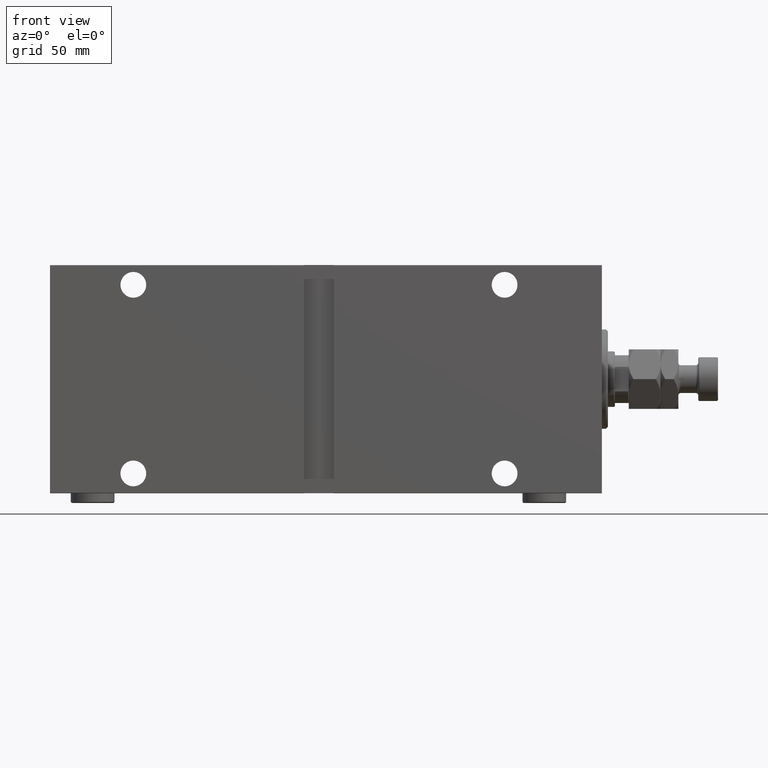
[diagram: clean part render]
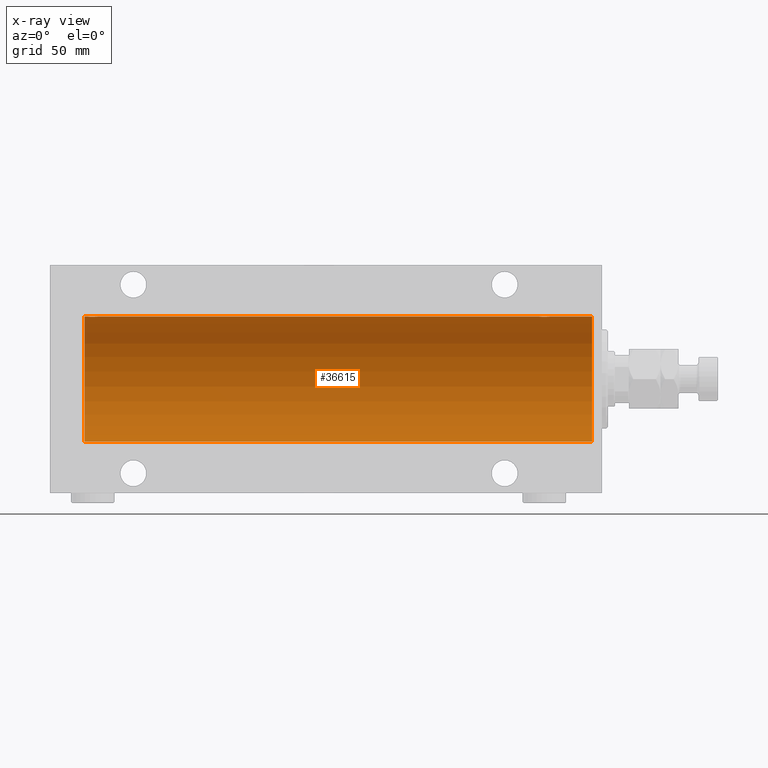
[diagram: x-ray — body ghosted, one internal face saturated and labeled with its STEP entity id]
A machine part, front view, then the same camera in x-ray: the body is ghosted and one INTERNAL B-rep face — a face not visible from any outside direction — is saturated and labeled: STEP entity #36615.
In plain terms, the highlighted cylindrical surface (partial cylindrical patch) has radius 31.5 mm, axis along (1, 0, -0).
Its self-contained STEP definition (entity closure, byte-faithful):
#252 = ORIENTED_EDGE ( 'NONE', *, *, #46034, .T. ) ;
#675 = EDGE_CURVE ( 'NONE', #44302, #26188, #6772, .T. ) ;
#958 = ORIENTED_EDGE ( 'NONE', *, *, #20059, .F. ) ;
#973 = CARTESIAN_POINT ( 'NONE',  ( 259.4202066295003988, -0.7905881588836159990, 31.49214662150070509 ) ) ;
#1061 = CARTESIAN_POINT ( 'NONE',  ( 29.77469094434372465, -2.904836261170110845, 31.36579955910872997 ) ) ;
#1433 = CARTESIAN_POINT ( 'NONE',  ( 258.8824687226664309, -1.833765390051051103, 31.44700610425690002 ) ) ;
#1525 = CARTESIAN_POINT ( 'NONE',  ( 27.01539640075336379, -2.258226318633789642, 31.41925597582827123 ) ) ;
#1758 = CARTESIAN_POINT ( 'NONE',  ( 29.39114547339941907, -2.980809450819707163, 31.35867074198615967 ) ) ;
#1893 = LINE ( 'NONE', #36379, #4332 ) ;
#2397 = VECTOR ( 'NONE', #34651, 1000.000000000000000 ) ;
#4332 = VECTOR ( 'NONE', #23081, 1000.000000000000000 ) ;
#4525 = CARTESIAN_POINT ( 'NONE',  ( 260.5000000000000000, 0.000000000000000000, 31.50000000000000000 ) ) ;
#4793 = CARTESIAN_POINT ( 'NONE',  ( 26.00000000000000355, -2.117263226567934635E-23, 31.50000000000000000 ) ) ;
#5025 = CARTESIAN_POINT ( 'NONE',  ( 31.92020662950041654, -0.7905881588836122242, 31.49214662150069088 ) ) ;
#5171 = CARTESIAN_POINT ( 'NONE',  ( 255.5305554434147837, -2.845838211243341576, 31.37127560316186603 ) ) ;
#5380 = CARTESIAN_POINT ( 'NONE',  ( 253.5000000000000000, -2.115685504757492612E-23, 31.50000000000000000 ) ) ;
#5402 = CARTESIAN_POINT ( 'NONE',  ( 258.7582450190326995, -1.984587626072049193, 31.43772577203671759 ) ) ;
#5492 = CARTESIAN_POINT ( 'NONE',  ( 27.66760041900836242, -2.695056442718537060, 31.38458855656185875 ) ) ;
#5792 = VERTEX_POINT ( 'NONE', #6223 ) ;
#6223 = CARTESIAN_POINT ( 'NONE',  ( 260.5000000000000000, 3.857637417314162689E-15, -31.50000000000000000 ) ) ;
#6772 = B_SPLINE_CURVE_WITH_KNOTS ( 'NONE', 3,
 ( #28921, #39196, #7293, #21486, #35703, #17985, #18199, #32420, #43133, #11238, #22844, #19351, #40104, #5171, #12145, #8434, #8659, #25885, #30074, #40550, #37313, #26335, #22610, #25658, #43579, #5402, #1433, #15858, #33570, #973, #30308, #29613 ),
 .UNSPECIFIED., .F., .F.,
 ( 4, 2, 2, 2, 2, 2, 2, 2, 2, 2, 2, 2, 2, 2, 2, 4 ),
 ( 0.009384682587134672571, 0.009971088165454075267, 0.01055749374377347796, 0.01114389932209287892, 0.01173030490041228162, 0.01231671047873168431, 0.01290311605705108527, 0.01348952163537048797, 0.01407592721368989067, 0.01466233279200929336, 0.01524873837032869606, 0.01583514394864809702, 0.01642154952696749798, 0.01700795510528690241, 0.01759436068360630337, 0.01876717184024510876 ),
 .UNSPECIFIED. ) ;
#7054 = VERTEX_POINT ( 'NONE', #38084 ) ;
#7154 = CIRCLE ( 'NONE', #12346, 31.50000000000000000 ) ;
#7169 = CARTESIAN_POINT ( 'NONE',  ( 259.5000000000000000, -6.062586396761331186E-16, 31.50000000000000000 ) ) ;
#7293 = CARTESIAN_POINT ( 'NONE',  ( 253.5189849060849383, -0.3904857149112045400, 31.49817436802768000 ) ) ;
#7708 = EDGE_CURVE ( 'NONE', #7054, #30007, #1893, .T. ) ;
#8064 = CARTESIAN_POINT ( 'NONE',  ( 27.16956308512997964, -2.384935707362441537, 31.40977595730572958 ) ) ;
#8295 = CARTESIAN_POINT ( 'NONE',  ( 26.61498557723073333, -1.830470878313879668, 31.44719957596828763 ) ) ;
#8434 = CARTESIAN_POINT ( 'NONE',  ( 256.1046588899990866, -2.980257240990059842, 31.35872356503798031 ) ) ;
#8522 = CARTESIAN_POINT ( 'NONE',  ( 31.38246872266632082, -1.833765390051044220, 31.44700610425690712 ) ) ;
#8659 = CARTESIAN_POINT ( 'NONE',  ( 256.2995354102591250, -2.999845816735303483, 31.35683219171744796 ) ) ;
#8997 = CARTESIAN_POINT ( 'NONE',  ( 26.39582218725271190, -1.502389880413000922, 31.46458023642405166 ) ) ;
#9316 = VERTEX_POINT ( 'NONE', #16674 ) ;
#11238 = CARTESIAN_POINT ( 'NONE',  ( 254.5153964007533887, -2.258226318633781649, 31.41925597582825702 ) ) ;
#11897 = AXIS2_PLACEMENT_3D ( 'NONE', #40574, #16115, #11942 ) ;
#11942 = DIRECTION ( 'NONE',  ( 0.000000000000000000, 0.000000000000000000, 1.000000000000000000 ) ) ;
#12145 = CARTESIAN_POINT ( 'NONE',  ( 255.7211808735768841, -2.903733559410688780, 31.36590199989304395 ) ) ;
#12346 = AXIS2_PLACEMENT_3D ( 'NONE', #20188, #45107, #45583 ) ;
#12798 = CIRCLE ( 'NONE', #15006, 31.50000000000000000 ) ;
#13406 = DIRECTION ( 'NONE',  ( -1.000000000000000000, -0.000000000000000000, -0.000000000000000000 ) ) ;
#13607 = ORIENTED_EDGE ( 'NONE', *, *, #35214, .T. ) ;
#14104 = DIRECTION ( 'NONE',  ( 0.000000000000000000, 0.000000000000000000, 1.000000000000000000 ) ) ;
#14676 = EDGE_CURVE ( 'NONE', #5792, #9316, #7154, .T. ) ;
#14700 = EDGE_LOOP ( 'NONE', ( #24247, #23047, #252, #30892, #13607, #958, #42829, #40759 ) ) ;
#15006 = AXIS2_PLACEMENT_3D ( 'NONE', #31119, #28305, #14104 ) ;
#15072 = VERTEX_POINT ( 'NONE', #28049 ) ;
#15255 = CARTESIAN_POINT ( 'NONE',  ( 30.82704225370269668, -2.387531469909775605, 31.40957782495775419 ) ) ;
#15488 = CARTESIAN_POINT ( 'NONE',  ( 32.00000000000000000, -0.3965830985361757932, 31.50000000000000711 ) ) ;
#15720 = CARTESIAN_POINT ( 'NONE',  ( 26.15339536257502218, -0.9669616078782009572, 31.48567319468626735 ) ) ;
#15858 = CARTESIAN_POINT ( 'NONE',  ( 259.1019214043915326, -1.506272792558334128, 31.46439306106696421 ) ) ;
#15879 = CYLINDRICAL_SURFACE ( 'NONE', #11897, 31.50000000000000000 ) ;
#16115 = DIRECTION ( 'NONE',  ( -1.000000000000000000, -0.000000000000000000, -0.000000000000000000 ) ) ;
#16506 = VECTOR ( 'NONE', #18478, 1000.000000000000000 ) ;
#16674 = CARTESIAN_POINT ( 'NONE',  ( 260.5000000000000000, 0.000000000000000000, 31.50000000000000000 ) ) ;
#16878 = LINE ( 'NONE', #24344, #22692 ) ;
#17985 = CARTESIAN_POINT ( 'NONE',  ( 253.8028576116330726, -1.328004386210319909, 31.47251238182141009 ) ) ;
#18199 = CARTESIAN_POINT ( 'NONE',  ( 253.8958221872527758, -1.502389880413008916, 31.46458023642405877 ) ) ;
#18478 = DIRECTION ( 'NONE',  ( -1.000000000000000000, -0.000000000000000000, -0.000000000000000000 ) ) ;
#18702 = LINE ( 'NONE', #4525, #16506 ) ;
#18750 = CARTESIAN_POINT ( 'NONE',  ( 26.73904537543871029, -1.981494824113332998, 31.43792153503156683 ) ) ;
#18976 = CARTESIAN_POINT ( 'NONE',  ( 26.09580549261944071, -0.7775502215293879082, 31.49099686045559565 ) ) ;
#19209 = CARTESIAN_POINT ( 'NONE',  ( 32.00000000000000000, -2.212280765433387153E-16, 31.50000000000000000 ) ) ;
#19351 = CARTESIAN_POINT ( 'NONE',  ( 254.9954371499300692, -2.602826974226410073, 31.39247100434485560 ) ) ;
#20059 = EDGE_CURVE ( 'NONE', #44302, #38624, #16878, .T. ) ;
#20188 = CARTESIAN_POINT ( 'NONE',  ( 260.5000000000000000, 0.000000000000000000, 0.000000000000000000 ) ) ;
#21486 = CARTESIAN_POINT ( 'NONE',  ( 253.5958054926194620, -0.7775502215293887964, 31.49099686045559565 ) ) ;
#22251 = CARTESIAN_POINT ( 'NONE',  ( 26.01898490608483527, -0.3904857149112059278, 31.49817436802766224 ) ) ;
#22610 = CARTESIAN_POINT ( 'NONE',  ( 258.0009815629614991, -2.604888532024794312, 31.39229907792057972 ) ) ;
#22692 = VECTOR ( 'NONE', #13406, 1000.000000000000000 ) ;
#22844 = CARTESIAN_POINT ( 'NONE',  ( 254.6695630851299939, -2.384935707362453083, 31.40977595730571537 ) ) ;
#22944 = CARTESIAN_POINT ( 'NONE',  ( 27.49543714993000521, -2.602826974226399859, 31.39247100434484850 ) ) ;
#23047 = ORIENTED_EDGE ( 'NONE', *, *, #45131, .T. ) ;
#23081 = DIRECTION ( 'NONE',  ( -1.000000000000000000, -0.000000000000000000, -0.000000000000000000 ) ) ;
#24247 = ORIENTED_EDGE ( 'NONE', *, *, #14676, .F. ) ;
#24344 = CARTESIAN_POINT ( 'NONE',  ( 260.5000000000000000, 0.000000000000000000, 31.50000000000000000 ) ) ;
#25658 = CARTESIAN_POINT ( 'NONE',  ( 258.3270422537025865, -2.387531469909780046, 31.40957782495775419 ) ) ;
#25744 = CARTESIAN_POINT ( 'NONE',  ( 29.19582294439440062, -3.000152387858491476, 31.35680286115500337 ) ) ;
#25885 = CARTESIAN_POINT ( 'NONE',  ( 256.6958229443944788, -3.000152387858483927, 31.35680286115500337 ) ) ;
#25972 = CARTESIAN_POINT ( 'NONE',  ( 31.60192140439154684, -1.506272792558327467, 31.46439306106696421 ) ) ;
#26188 = VERTEX_POINT ( 'NONE', #7169 ) ;
#26204 = CARTESIAN_POINT ( 'NONE',  ( 26.00000000000000355, -0.1958045626907478631, 31.50000000000000000 ) ) ;
#26335 = CARTESIAN_POINT ( 'NONE',  ( 257.8286541468750670, -2.696917666262900415, 31.38442820068732075 ) ) ;
#26426 = CARTESIAN_POINT ( 'NONE',  ( 31.25824501903267461, -1.984587626072075617, 31.43772577203673180 ) ) ;
#26441 = CARTESIAN_POINT ( 'NONE',  ( 5.000000000000004441, 0.000000000000000000, 31.50000000000000000 ) ) ;
#27556 = CARTESIAN_POINT ( 'NONE',  ( 32.00000000000000000, -2.212280765433387153E-16, 31.50000000000000000 ) ) ;
#28049 = CARTESIAN_POINT ( 'NONE',  ( 5.000000000000004441, 3.857637417314162689E-15, -31.50000000000000000 ) ) ;
#28305 = DIRECTION ( 'NONE',  ( -1.000000000000000000, 0.000000000000000000, 0.000000000000000000 ) ) ;
#28921 = CARTESIAN_POINT ( 'NONE',  ( 253.5000000000000000, -2.115685504757492612E-23, 31.50000000000000000 ) ) ;
#29613 = CARTESIAN_POINT ( 'NONE',  ( 259.5000000000000000, -6.062586396761331186E-16, 31.50000000000000000 ) ) ;
#30007 = VERTEX_POINT ( 'NONE', #26441 ) ;
#30074 = CARTESIAN_POINT ( 'NONE',  ( 256.8911454733994333, -2.980809450819710271, 31.35867074198615256 ) ) ;
#30308 = CARTESIAN_POINT ( 'NONE',  ( 259.5000000000000000, -0.3965830985361755157, 31.50000000000000000 ) ) ;
#30892 = ORIENTED_EDGE ( 'NONE', *, *, #7708, .F. ) ;
#31119 = CARTESIAN_POINT ( 'NONE',  ( 5.000000000000004441, 0.000000000000000000, 0.000000000000000000 ) ) ;
#32420 = CARTESIAN_POINT ( 'NONE',  ( 254.1149855772306694, -1.830470878313883887, 31.44719957596828763 ) ) ;
#33428 = CARTESIAN_POINT ( 'NONE',  ( 30.50098156296147422, -2.604888532024794312, 31.39229907792057972 ) ) ;
#33570 = CARTESIAN_POINT ( 'NONE',  ( 259.1952964235901504, -1.331741824817664455, 31.47235367475393630 ) ) ;
#33661 = CARTESIAN_POINT ( 'NONE',  ( 28.03055544341478367, -2.845838211243338023, 31.37127560316188024 ) ) ;
#34651 = DIRECTION ( 'NONE',  ( -1.000000000000000000, -0.000000000000000000, -0.000000000000000000 ) ) ;
#35214 = EDGE_CURVE ( 'NONE', #7054, #38624, #41226, .T. ) ;
#35703 = CARTESIAN_POINT ( 'NONE',  ( 253.6533953625750257, -0.9669616078782133917, 31.48567319468626735 ) ) ;
#36379 = CARTESIAN_POINT ( 'NONE',  ( 260.5000000000000000, 0.000000000000000000, 31.50000000000000000 ) ) ;
#36615 = ADVANCED_FACE ( 'NONE', ( #43837 ), #15879, .F. ) ;
#36702 = CARTESIAN_POINT ( 'NONE',  ( 31.69529642359011135, -1.331741824817660236, 31.47235367475394341 ) ) ;
#36931 = CARTESIAN_POINT ( 'NONE',  ( 28.22118087357679528, -2.903733559410688336, 31.36590199989304395 ) ) ;
#37313 = CARTESIAN_POINT ( 'NONE',  ( 257.4651572981064191, -2.847307171789032143, 31.37114183851420179 ) ) ;
#38084 = CARTESIAN_POINT ( 'NONE',  ( 26.00000000000000355, -2.117263226567934635E-23, 31.50000000000000000 ) ) ;
#38624 = VERTEX_POINT ( 'NONE', #27556 ) ;
#39196 = CARTESIAN_POINT ( 'NONE',  ( 253.5000000000000000, -0.1958045626907485570, 31.49999999999999289 ) ) ;
#39957 = CARTESIAN_POINT ( 'NONE',  ( 30.32865414687508832, -2.696917666262911961, 31.38442820068732075 ) ) ;
#40104 = CARTESIAN_POINT ( 'NONE',  ( 255.1676004190083802, -2.695056442718541057, 31.38458855656185875 ) ) ;
#40419 = CARTESIAN_POINT ( 'NONE',  ( 26.30285761163299441, -1.328004386210307919, 31.47251238182140298 ) ) ;
#40482 = CARTESIAN_POINT ( 'NONE',  ( 260.5000000000000000, 3.857637417314162689E-15, -31.50000000000000000 ) ) ;
#40550 = CARTESIAN_POINT ( 'NONE',  ( 257.2746909443437175, -2.904836261170121059, 31.36579955910873707 ) ) ;
#40574 = CARTESIAN_POINT ( 'NONE',  ( 260.5000000000000000, 0.000000000000000000, 0.000000000000000000 ) ) ;
#40759 = ORIENTED_EDGE ( 'NONE', *, *, #45677, .F. ) ;
#40884 = CARTESIAN_POINT ( 'NONE',  ( 30.98143462873041543, -2.261012035264784004, 31.41905495618427935 ) ) ;
#41226 = B_SPLINE_CURVE_WITH_KNOTS ( 'NONE', 3,
 ( #4793, #26204, #22251, #18976, #15720, #40419, #8997, #8295, #18750, #1525, #8064, #22944, #5492, #33661, #36931, #44136, #43670, #25744, #1758, #1061, #43436, #39957, #33428, #15255, #40884, #26426, #8522, #25972, #36702, #5025, #15488, #19209 ),
 .UNSPECIFIED., .F., .F.,
 ( 4, 2, 2, 2, 2, 2, 2, 2, 2, 2, 2, 2, 2, 2, 2, 4 ),
 ( 0.009384682587134636142, 0.009971088165454035368, 0.01055749374377343633, 0.01114389932209283729, 0.01173030490041223652, 0.01231671047873163748, 0.01290311605705103844, 0.01348952163537044113, 0.01407592721368984209, 0.01466233279200924305, 0.01524873837032864402, 0.01583514394864804498, 0.01642154952696744594, 0.01700795510528684690, 0.01759436068360624786, 0.01876717184024504284 ),
 .UNSPECIFIED. ) ;
#42829 = ORIENTED_EDGE ( 'NONE', *, *, #675, .T. ) ;
#43133 = CARTESIAN_POINT ( 'NONE',  ( 254.2390453754387920, -1.981494824113327446, 31.43792153503156683 ) ) ;
#43436 = CARTESIAN_POINT ( 'NONE',  ( 29.96515729810639783, -2.847307171789040581, 31.37114183851420890 ) ) ;
#43579 = CARTESIAN_POINT ( 'NONE',  ( 258.4814346287304829, -2.261012035264763131, 31.41905495618428645 ) ) ;
#43670 = CARTESIAN_POINT ( 'NONE',  ( 28.79953541025905395, -2.999845816735302151, 31.35683219171744796 ) ) ;
#43837 = FACE_OUTER_BOUND ( 'NONE', #14700, .T. ) ;
#43975 = LINE ( 'NONE', #40482, #2397 ) ;
#44136 = CARTESIAN_POINT ( 'NONE',  ( 28.60465888999905815, -2.980257240990060286, 31.35872356503798031 ) ) ;
#44302 = VERTEX_POINT ( 'NONE', #5380 ) ;
#45107 = DIRECTION ( 'NONE',  ( -1.000000000000000000, 0.000000000000000000, 0.000000000000000000 ) ) ;
#45131 = EDGE_CURVE ( 'NONE', #5792, #15072, #43975, .T. ) ;
#45583 = DIRECTION ( 'NONE',  ( 0.000000000000000000, 0.000000000000000000, 1.000000000000000000 ) ) ;
#45677 = EDGE_CURVE ( 'NONE', #9316, #26188, #18702, .T. ) ;
#46034 = EDGE_CURVE ( 'NONE', #15072, #30007, #12798, .T. ) ;